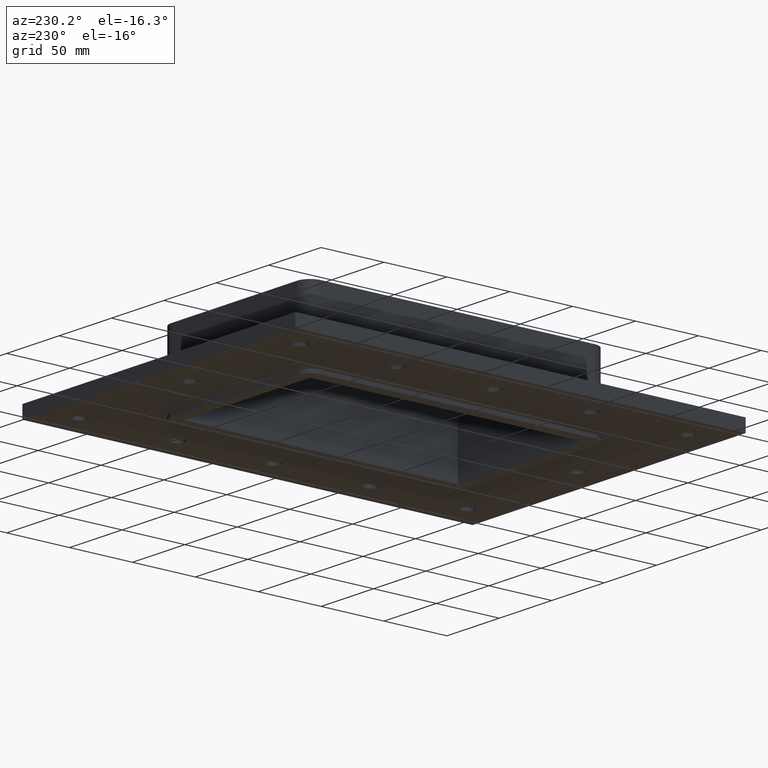
[diagram: clean part render]
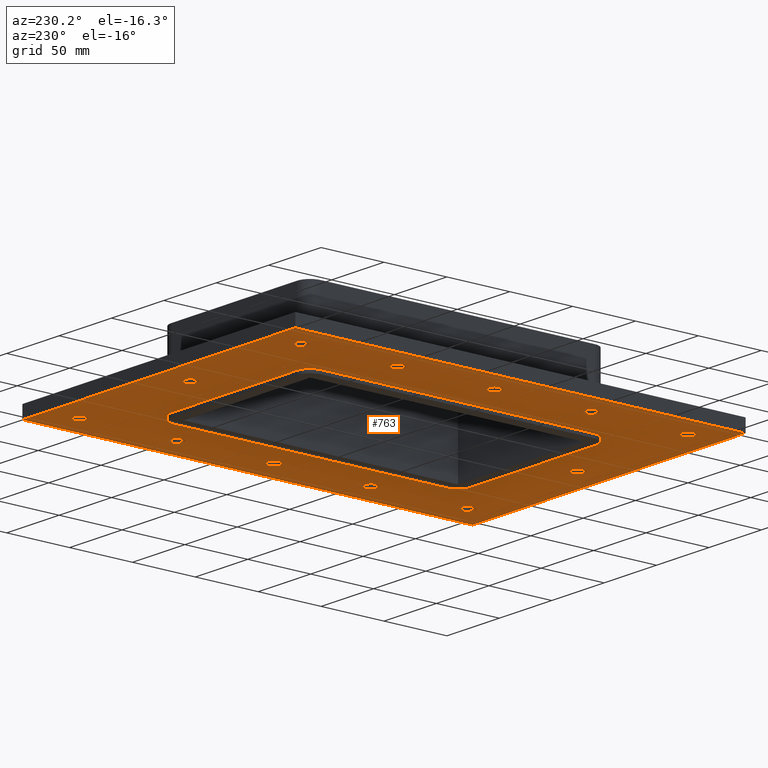
[diagram: same view with one face highlighted and labeled with its STEP entity id]
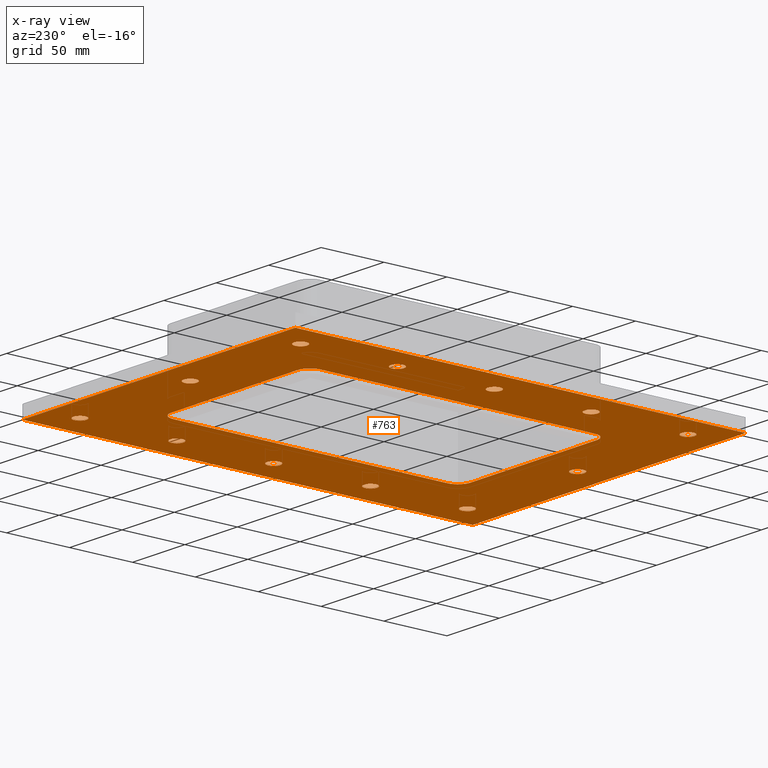
[diagram: x-ray of the same camera — body ghosted, the highlighted face saturated]
A machine part, auxiliary view. The second image highlights one B-rep face of the part: STEP entity #763.
The next image is the same camera in x-ray: the body ghosted, the highlighted face saturated — about 0% of this face is hidden behind the body in this view.
In plain terms, the highlighted planar face has unit normal (0, 0, 1).
Its self-contained STEP definition (entity closure, byte-faithful):
#73=CARTESIAN_POINT('',(-5.249999999999968,-154.00000000000003,-27.000000000000028));
#74=VERTEX_POINT('',#73);
#75=CARTESIAN_POINT('',(3.552714E-014,-154.00000000000003,-27.000000000000028));
#76=DIRECTION('',(0.0,0.0,1.0));
#77=DIRECTION('',(1.0,0.0,0.0));
#78=AXIS2_PLACEMENT_3D('',#75,#76,#77);
#79=CIRCLE('',#78,5.25);
#80=EDGE_CURVE('',#74,#74,#79,.T.);
#101=CARTESIAN_POINT('',(-5.250000000000004,154.00000000000003,-27.000000000000028));
#102=VERTEX_POINT('',#101);
#103=CARTESIAN_POINT('',(0.0,154.00000000000003,-27.000000000000028));
#104=DIRECTION('',(0.0,0.0,1.0));
#105=DIRECTION('',(1.0,0.0,0.0));
#106=AXIS2_PLACEMENT_3D('',#103,#104,#105);
#107=CIRCLE('',#106,5.25);
#108=EDGE_CURVE('',#102,#102,#107,.T.);
#129=CARTESIAN_POINT('',(100.00000000000001,-76.999999999999957,-27.000000000000028));
#130=VERTEX_POINT('',#129);
#131=CARTESIAN_POINT('',(105.25000000000003,-76.999999999999957,-27.000000000000028));
#132=DIRECTION('',(0.0,0.0,1.0));
#133=DIRECTION('',(1.0,0.0,0.0));
#134=AXIS2_PLACEMENT_3D('',#131,#132,#133);
#135=CIRCLE('',#134,5.25);
#136=EDGE_CURVE('',#130,#130,#135,.T.);
#157=CARTESIAN_POINT('',(100.00000000000001,3.552714E-014,-27.000000000000028));
#158=VERTEX_POINT('',#157);
#159=CARTESIAN_POINT('',(105.25000000000003,3.552714E-014,-27.000000000000028));
#160=DIRECTION('',(0.0,0.0,1.0));
#161=DIRECTION('',(1.0,0.0,0.0));
#162=AXIS2_PLACEMENT_3D('',#159,#160,#161);
#163=CIRCLE('',#162,5.25);
#164=EDGE_CURVE('',#158,#158,#163,.T.);
#185=CARTESIAN_POINT('',(100.0,77.000000000000043,-27.000000000000028));
#186=VERTEX_POINT('',#185);
#187=CARTESIAN_POINT('',(105.25,77.000000000000043,-27.000000000000028));
#188=DIRECTION('',(0.0,0.0,1.0));
#189=DIRECTION('',(1.0,0.0,0.0));
#190=AXIS2_PLACEMENT_3D('',#187,#188,#189);
#191=CIRCLE('',#190,5.25);
#192=EDGE_CURVE('',#186,#186,#191,.T.);
#213=CARTESIAN_POINT('',(-110.49999999999999,76.999999999999957,-27.000000000000028));
#214=VERTEX_POINT('',#213);
#215=CARTESIAN_POINT('',(-105.24999999999999,76.999999999999957,-27.000000000000028));
#216=DIRECTION('',(0.0,0.0,1.0));
#217=DIRECTION('',(1.0,0.0,0.0));
#218=AXIS2_PLACEMENT_3D('',#215,#216,#217);
#219=CIRCLE('',#218,5.25);
#220=EDGE_CURVE('',#214,#214,#219,.T.);
#241=CARTESIAN_POINT('',(-110.49999999999997,-3.552714E-014,-27.000000000000028));
#242=VERTEX_POINT('',#241);
#243=CARTESIAN_POINT('',(-105.24999999999997,-3.552714E-014,-27.000000000000028));
#244=DIRECTION('',(0.0,0.0,1.0));
#245=DIRECTION('',(1.0,0.0,0.0));
#246=AXIS2_PLACEMENT_3D('',#243,#244,#245);
#247=CIRCLE('',#246,5.25);
#248=EDGE_CURVE('',#242,#242,#247,.T.);
#269=CARTESIAN_POINT('',(-110.49999999999997,-77.000000000000043,-27.000000000000028));
#270=VERTEX_POINT('',#269);
#271=CARTESIAN_POINT('',(-105.24999999999997,-77.000000000000043,-27.000000000000028));
#272=DIRECTION('',(0.0,0.0,1.0));
#273=DIRECTION('',(1.0,0.0,0.0));
#274=AXIS2_PLACEMENT_3D('',#271,#272,#273);
#275=CIRCLE('',#274,5.25);
#276=EDGE_CURVE('',#270,#270,#275,.T.);
#297=CARTESIAN_POINT('',(-110.5,154.0,-27.000000000000028));
#298=VERTEX_POINT('',#297);
#299=CARTESIAN_POINT('',(-105.25,154.0,-27.000000000000028));
#300=DIRECTION('',(0.0,0.0,1.0));
#301=DIRECTION('',(1.0,0.0,0.0));
#302=AXIS2_PLACEMENT_3D('',#299,#300,#301);
#303=CIRCLE('',#302,5.25);
#304=EDGE_CURVE('',#298,#298,#303,.T.);
#325=CARTESIAN_POINT('',(99.999999999999986,154.00000000000006,-27.000000000000028));
#326=VERTEX_POINT('',#325);
#327=CARTESIAN_POINT('',(105.24999999999999,154.00000000000006,-27.000000000000028));
#328=DIRECTION('',(0.0,0.0,1.0));
#329=DIRECTION('',(1.0,0.0,0.0));
#330=AXIS2_PLACEMENT_3D('',#327,#328,#329);
#331=CIRCLE('',#330,5.25);
#332=EDGE_CURVE('',#326,#326,#331,.T.);
#353=CARTESIAN_POINT('',(100.00000000000003,-154.0,-27.000000000000028));
#354=VERTEX_POINT('',#353);
#355=CARTESIAN_POINT('',(105.25000000000004,-154.0,-27.000000000000028));
#356=DIRECTION('',(0.0,0.0,1.0));
#357=DIRECTION('',(1.0,0.0,0.0));
#358=AXIS2_PLACEMENT_3D('',#355,#356,#357);
#359=CIRCLE('',#358,5.25);
#360=EDGE_CURVE('',#354,#354,#359,.T.);
#381=CARTESIAN_POINT('',(-110.49999999999997,-154.00000000000006,-27.000000000000028));
#382=VERTEX_POINT('',#381);
#383=CARTESIAN_POINT('',(-105.24999999999997,-154.00000000000006,-27.000000000000028));
#384=DIRECTION('',(0.0,0.0,1.0));
#385=DIRECTION('',(1.0,0.0,0.0));
#386=AXIS2_PLACEMENT_3D('',#383,#384,#385);
#387=CIRCLE('',#386,5.25);
#388=EDGE_CURVE('',#382,#382,#387,.T.);
#409=CARTESIAN_POINT('',(-130.24999999999997,-179.00000000000006,-27.0));
#410=VERTEX_POINT('',#409);
#411=CARTESIAN_POINT('',(-130.25000000000003,179.0,-27.0));
#412=VERTEX_POINT('',#411);
#413=CARTESIAN_POINT('',(-130.24999999999997,-179.00000000000006,-27.0));
#414=DIRECTION('',(0.0,1.0,0.0));
#415=VECTOR('',#414,358.00000000000006);
#416=LINE('',#413,#415);
#417=EDGE_CURVE('',#410,#412,#416,.T.);
#449=CARTESIAN_POINT('',(130.25,179.00000000000006,-27.0));
#450=VERTEX_POINT('',#449);
#451=CARTESIAN_POINT('',(-130.25000000000003,179.0,-27.0));
#452=DIRECTION('',(1.0,0.0,0.0));
#453=VECTOR('',#452,260.5);
#454=LINE('',#451,#453);
#455=EDGE_CURVE('',#412,#450,#454,.T.);
#480=CARTESIAN_POINT('',(130.25000000000003,-179.0,-27.0));
#481=VERTEX_POINT('',#480);
#482=CARTESIAN_POINT('',(130.25,179.00000000000006,-27.0));
#483=DIRECTION('',(0.0,-1.0,0.0));
#484=VECTOR('',#483,358.00000000000006);
#485=LINE('',#482,#484);
#486=EDGE_CURVE('',#450,#481,#485,.T.);
#511=CARTESIAN_POINT('',(130.25000000000003,-179.0,-27.0));
#512=DIRECTION('',(-1.0,0.0,0.0));
#513=VECTOR('',#512,260.5);
#514=LINE('',#511,#513);
#515=EDGE_CURVE('',#481,#410,#514,.T.);
#646=CARTESIAN_POINT('',(6.892896E-015,3.389007E-015,-27.0));
#647=DIRECTION('',(0.0,0.0,1.0));
#648=DIRECTION('',(1.0,0.0,0.0));
#649=AXIS2_PLACEMENT_3D('',#646,#647,#648);
#650=PLANE('',#649);
#651=ORIENTED_EDGE('',*,*,#515,.T.);
#652=ORIENTED_EDGE('',*,*,#417,.T.);
#653=ORIENTED_EDGE('',*,*,#455,.T.);
#654=ORIENTED_EDGE('',*,*,#486,.T.);
#655=EDGE_LOOP('',(#651,#652,#653,#654));
#656=FACE_OUTER_BOUND('',#655,.T.);
#657=ORIENTED_EDGE('',*,*,#80,.T.);
#658=EDGE_LOOP('',(#657));
#659=FACE_BOUND('',#658,.T.);
#660=ORIENTED_EDGE('',*,*,#108,.T.);
#661=EDGE_LOOP('',(#660));
#662=FACE_BOUND('',#661,.T.);
#663=ORIENTED_EDGE('',*,*,#136,.T.);
#664=EDGE_LOOP('',(#663));
#665=FACE_BOUND('',#664,.T.);
#666=ORIENTED_EDGE('',*,*,#164,.T.);
#667=EDGE_LOOP('',(#666));
#668=FACE_BOUND('',#667,.T.);
#669=ORIENTED_EDGE('',*,*,#192,.T.);
#670=EDGE_LOOP('',(#669));
#671=FACE_BOUND('',#670,.T.);
#672=ORIENTED_EDGE('',*,*,#220,.T.);
#673=EDGE_LOOP('',(#672));
#674=FACE_BOUND('',#673,.T.);
#675=ORIENTED_EDGE('',*,*,#248,.T.);
#676=EDGE_LOOP('',(#675));
#677=FACE_BOUND('',#676,.T.);
#678=ORIENTED_EDGE('',*,*,#276,.T.);
#679=EDGE_LOOP('',(#678));
#680=FACE_BOUND('',#679,.T.);
#681=ORIENTED_EDGE('',*,*,#304,.T.);
#682=EDGE_LOOP('',(#681));
#683=FACE_BOUND('',#682,.T.);
#684=ORIENTED_EDGE('',*,*,#332,.T.);
#685=EDGE_LOOP('',(#684));
#686=FACE_BOUND('',#685,.T.);
#687=ORIENTED_EDGE('',*,*,#360,.T.);
#688=EDGE_LOOP('',(#687));
#689=FACE_BOUND('',#688,.T.);
#690=ORIENTED_EDGE('',*,*,#388,.T.);
#691=EDGE_LOOP('',(#690));
#692=FACE_BOUND('',#691,.T.);
#693=CARTESIAN_POINT('',(60.249999999999986,119.00000000000006,-27.0));
#694=VERTEX_POINT('',#693);
#695=CARTESIAN_POINT('',(70.249999999999986,109.00000000000006,-27.0));
#696=VERTEX_POINT('',#695);
#697=CARTESIAN_POINT('',(60.249999999999986,108.99999999999991,-27.0));
#698=DIRECTION('',(0.0,0.0,-1.0));
#699=DIRECTION('',(0.707106781186547,0.707106781186547,0.0));
#700=AXIS2_PLACEMENT_3D('',#697,#698,#699);
#701=CIRCLE('',#700,9.999999999999998);
#702=EDGE_CURVE('',#694,#696,#701,.T.);
#703=ORIENTED_EDGE('',*,*,#702,.F.);
#704=CARTESIAN_POINT('',(-60.250000000000021,119.00000000000006,-27.0));
#705=VERTEX_POINT('',#704);
#706=CARTESIAN_POINT('',(-60.250000000000014,118.99999999999991,-27.0));
#707=DIRECTION('',(1.0,0.0,0.0));
#708=VECTOR('',#707,120.5);
#709=LINE('',#706,#708);
#710=EDGE_CURVE('',#705,#694,#709,.T.);
#711=ORIENTED_EDGE('',*,*,#710,.F.);
#712=CARTESIAN_POINT('',(-70.250000000000028,109.00000000000006,-27.0));
#713=VERTEX_POINT('',#712);
#714=CARTESIAN_POINT('',(-60.250000000000021,108.99999999999991,-27.0));
#715=DIRECTION('',(0.0,0.0,-1.0));
#716=DIRECTION('',(-0.707106781186547,0.707106781186547,0.0));
#717=AXIS2_PLACEMENT_3D('',#714,#715,#716);
#718=CIRCLE('',#717,9.999999999999998);
#719=EDGE_CURVE('',#713,#705,#718,.T.);
#720=ORIENTED_EDGE('',*,*,#719,.F.);
#721=CARTESIAN_POINT('',(-70.249999999999972,-108.99999999999999,-27.0));
#722=VERTEX_POINT('',#721);
#723=CARTESIAN_POINT('',(-70.249999999999957,-109.0,-27.0));
#724=DIRECTION('',(0.0,1.0,0.0));
#725=VECTOR('',#724,218.00000000000006);
#726=LINE('',#723,#725);
#727=EDGE_CURVE('',#722,#713,#726,.T.);
#728=ORIENTED_EDGE('',*,*,#727,.F.);
#729=CARTESIAN_POINT('',(-60.249999999999986,-118.99999999999999,-27.0));
#730=VERTEX_POINT('',#729);
#731=CARTESIAN_POINT('',(-60.249999999999957,-109.00000000000006,-27.0));
#732=DIRECTION('',(0.0,0.0,-1.0));
#733=DIRECTION('',(-0.707106781186547,-0.707106781186547,0.0));
#734=AXIS2_PLACEMENT_3D('',#731,#732,#733);
#735=CIRCLE('',#734,9.999999999999998);
#736=EDGE_CURVE('',#730,#722,#735,.T.);
#737=ORIENTED_EDGE('',*,*,#736,.F.);
#738=CARTESIAN_POINT('',(60.250000000000021,-118.99999999999999,-27.0));
#739=VERTEX_POINT('',#738);
#740=CARTESIAN_POINT('',(60.250000000000028,-119.00000000000006,-27.0));
#741=DIRECTION('',(-1.0,0.0,0.0));
#742=VECTOR('',#741,120.50000000000001);
#743=LINE('',#740,#742);
#744=EDGE_CURVE('',#739,#730,#743,.T.);
#745=ORIENTED_EDGE('',*,*,#744,.F.);
#746=CARTESIAN_POINT('',(70.250000000000028,-108.99999999999999,-27.0));
#747=VERTEX_POINT('',#746);
#748=CARTESIAN_POINT('',(60.250000000000043,-109.00000000000006,-27.0));
#749=DIRECTION('',(0.0,0.0,-1.0));
#750=DIRECTION('',(0.707106781186547,-0.707106781186547,0.0));
#751=AXIS2_PLACEMENT_3D('',#748,#749,#750);
#752=CIRCLE('',#751,9.999999999999998);
#753=EDGE_CURVE('',#747,#739,#752,.T.);
#754=ORIENTED_EDGE('',*,*,#753,.F.);
#755=CARTESIAN_POINT('',(70.249999999999986,109.00000000000006,-27.0));
#756=DIRECTION('',(0.0,-1.0,0.0));
#757=VECTOR('',#756,218.00000000000006);
#758=LINE('',#755,#757);
#759=EDGE_CURVE('',#696,#747,#758,.T.);
#760=ORIENTED_EDGE('',*,*,#759,.F.);
#761=EDGE_LOOP('',(#703,#711,#720,#728,#737,#745,#754,#760));
#762=FACE_BOUND('',#761,.T.);
#763=ADVANCED_FACE('',(#656,#659,#662,#665,#668,#671,#674,#677,#680,#683,#686,#689,#692,#762),#650,.F.);